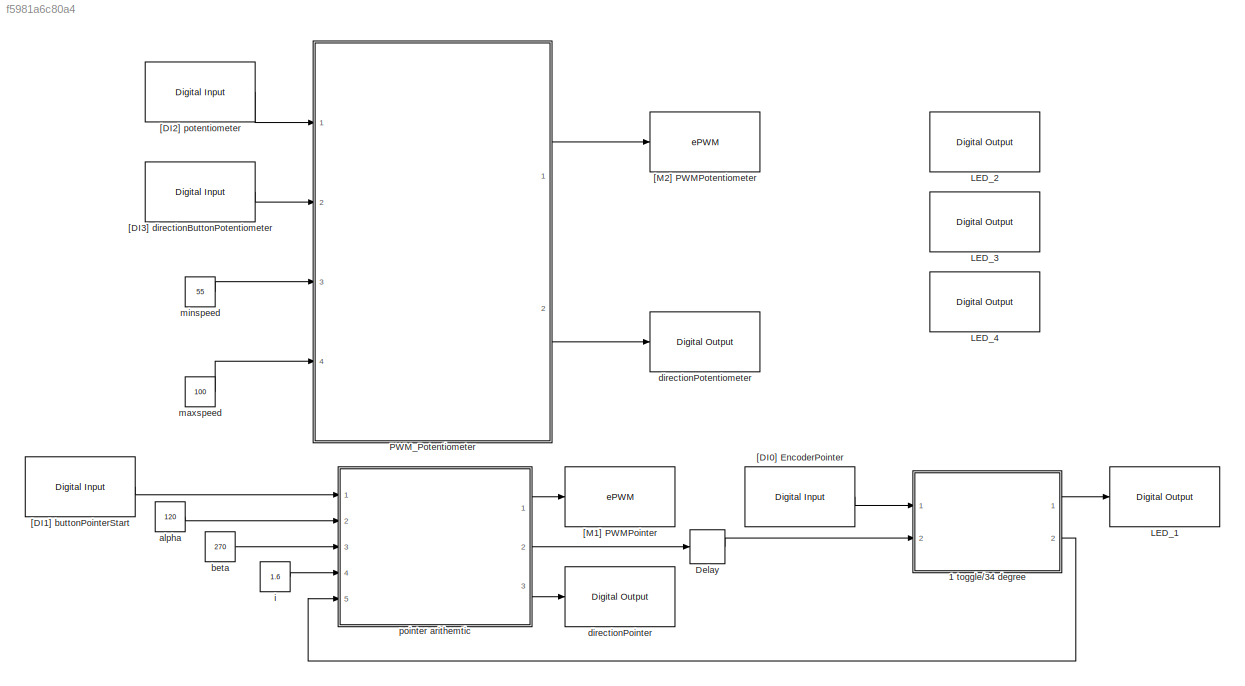
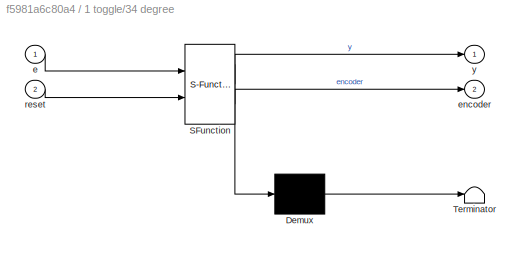
MODEL slx_f5981a6c80a4
KIND model
BLOCK [SubSystem] 1 toggle//34 degree
  ErrorFcn = Stateflow.Translate.translate
  PermitHierarchicalResolution = ExplicitOnly
  Ports = [2, 2]
  RequestExecContextInheritance = off
  SFBlockType = Chart
  TreatAsAtomicUnit = on
BLOCK [Demux] 1 toggle//34 degree/ Demux 
  Outputs = 1
  Ports = [1, 1]
BLOCK [S-Function] 1 toggle//34 degree/ SFunction 
  EnableBusSupport = on
  FunctionName = sf_sfun
  PortCounts = [2 3]
  Ports = [2, 3]
  Tag = Stateflow S-Function introductionTaskPlusPotentiometer_tIB 1
BLOCK [Terminator] 1 toggle//34 degree/ Terminator 
BLOCK [Inport] 1 toggle//34 degree/e
  IconDisplay = Port number
BLOCK [Outport] 1 toggle//34 degree/encoder
  IconDisplay = Port number
  Port = 2
BLOCK [Inport] 1 toggle//34 degree/reset
  IconDisplay = Port number
  Port = 2
BLOCK [Outport] 1 toggle//34 degree/y
  IconDisplay = Port number
BLOCK [Delay] Delay
  DelayLength = 1
  InitialCondition = 0
  InputPortMap = u0
  Ports = [1, 1]
BLOCK [Reference] LED_1  REF=c2833xlib/Digital Output
  GPIO_BIT0_Toggle = off
  GPIO_BIT1_Toggle = off
  GPIO_BIT2_Toggle = off
  GPIO_BIT3_Toggle = off
  GPIO_BIT4_Toggle = off
  GPIO_BIT5_Toggle = off
  GPIO_BIT6_Toggle = off
  GPIO_BIT7_Toggle = off
  GPIO_Bit0 = off
  GPIO_Bit1 = off
  GPIO_Bit2 = on
  GPIO_Bit3 = off
  GPIO_Bit4 = off
  GPIO_Bit5 = off
  GPIO_Bit6 = off
  GPIO_Bit7 = off
  GPIO_Number = GPIO56~GPIO63
  Ports = [1]
  SourceBlock = c2833xlib/Digital Output
  SourceType = C2833x GPIO Digital Output
  UserDataPersistent = on
BLOCK [Reference] LED_2  REF=c2833xlib/Digital Output
  GPIO_BIT0_Toggle = off
  GPIO_BIT1_Toggle = off
  GPIO_BIT2_Toggle = off
  GPIO_BIT3_Toggle = on
  GPIO_BIT4_Toggle = off
  GPIO_BIT5_Toggle = off
  GPIO_BIT6_Toggle = off
  GPIO_BIT7_Toggle = off
  GPIO_Bit0 = off
  GPIO_Bit1 = off
  GPIO_Bit2 = off
  GPIO_Bit3 = on
  GPIO_Bit4 = off
  GPIO_Bit5 = off
  GPIO_Bit6 = off
  GPIO_Bit7 = off
  GPIO_Number = GPIO56~GPIO63
  Ports = [1]
  SourceBlock = c2833xlib/Digital Output
  SourceType = C2833x GPIO Digital Output
  UserDataPersistent = on
BLOCK [Reference] LED_3  REF=c2833xlib/Digital Output
  GPIO_BIT0_Toggle = off
  GPIO_BIT1_Toggle = off
  GPIO_BIT2_Toggle = off
  GPIO_BIT3_Toggle = off
  GPIO_BIT4_Toggle = on
  GPIO_BIT5_Toggle = off
  GPIO_BIT6_Toggle = off
  GPIO_BIT7_Toggle = off
  GPIO_Bit0 = off
  GPIO_Bit1 = off
  GPIO_Bit2 = off
  GPIO_Bit3 = off
  GPIO_Bit4 = on
  GPIO_Bit5 = off
  GPIO_Bit6 = off
  GPIO_Bit7 = off
  GPIO_Number = GPIO56~GPIO63
  Ports = [1]
  SourceBlock = c2833xlib/Digital Output
  SourceType = C2833x GPIO Digital Output
  UserDataPersistent = on
BLOCK [Reference] LED_4  REF=c2833xlib/Digital Output
  GPIO_BIT0_Toggle = off
  GPIO_BIT1_Toggle = off
  GPIO_BIT2_Toggle = off
  GPIO_BIT3_Toggle = off
  GPIO_BIT4_Toggle = on
  GPIO_BIT5_Toggle = on
  GPIO_BIT6_Toggle = off
  GPIO_BIT7_Toggle = off
  GPIO_Bit0 = off
  GPIO_Bit1 = off
  GPIO_Bit2 = off
  GPIO_Bit3 = off
  GPIO_Bit4 = off
  GPIO_Bit5 = on
  GPIO_Bit6 = off
  GPIO_Bit7 = off
  GPIO_Number = GPIO56~GPIO63
  Ports = [1]
  SourceBlock = c2833xlib/Digital Output
  SourceType = C2833x GPIO Digital Output
  UserDataPersistent = on
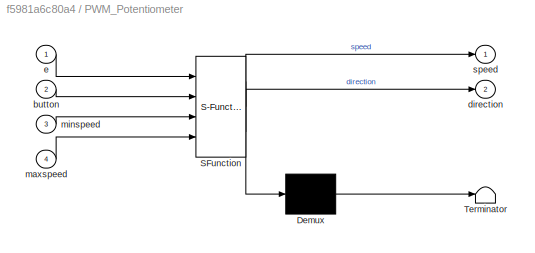
BLOCK [SubSystem] PWM_Potentiometer
  ErrorFcn = Stateflow.Translate.translate
  PermitHierarchicalResolution = ExplicitOnly
  Ports = [4, 2]
  RequestExecContextInheritance = off
  SFBlockType = Chart
  TreatAsAtomicUnit = on
BLOCK [Demux] PWM_Potentiometer/ Demux 
  Outputs = 1
  Ports = [1, 1]
BLOCK [S-Function] PWM_Potentiometer/ SFunction 
  EnableBusSupport = on
  FunctionName = sf_sfun
  PortCounts = [4 3]
  Ports = [4, 3]
  Tag = Stateflow S-Function introductionTaskPlusPotentiometer_tIB 2
BLOCK [Terminator] PWM_Potentiometer/ Terminator 
BLOCK [Inport] PWM_Potentiometer/button
  IconDisplay = Port number
  Port = 2
BLOCK [Outport] PWM_Potentiometer/direction
  IconDisplay = Port number
  Port = 2
BLOCK [Inport] PWM_Potentiometer/e
  IconDisplay = Port number
BLOCK [Inport] PWM_Potentiometer/maxspeed
  IconDisplay = Port number
  Port = 4
BLOCK [Inport] PWM_Potentiometer/minspeed
  IconDisplay = Port number
  Port = 3
BLOCK [Outport] PWM_Potentiometer/speed
  IconDisplay = Port number
BLOCK [Reference] [DI0] EncoderPointer  REF=c2833xlib/Digital Input
  GPIO_Bit0 = on
  GPIO_Bit0_Qualification = Sync to SYSCLKOUT
  GPIO_Bit1 = off
  GPIO_Bit1_Qualification = Sync to SYSCLKOUT
  GPIO_Bit2 = off
  GPIO_Bit2_Qualification = Sync to SYSCLKOUT
  GPIO_Bit3 = off
  GPIO_Bit3_Qualification = Sync to SYSCLKOUT
  GPIO_Bit4 = off
  GPIO_Bit4_Qualification = Sync to SYSCLKOUT
  GPIO_Bit5 = off
  GPIO_Bit5_Qualification = Sync to SYSCLKOUT
  GPIO_Bit6 = off
  GPIO_Bit6_Qualification = Sync to SYSCLKOUT
  GPIO_Bit7 = off
  GPIO_Bit7_Qualification = Sync to SYSCLKOUT
  GPIO_Number = GPIO24~GPIO31
  Ports = [0, 1]
  Qualification_Period = -1
  SourceBlock = c2833xlib/Digital Input
  SourceType = C2833x GPIO Digital Input
  UserDataPersistent = on
  dataType = auto
  sampleTime = 0.001
BLOCK [Reference] [DI1] buttonPointerStart  REF=c2833xlib/Digital Input
  GPIO_Bit0 = off
  GPIO_Bit0_Qualification = Sync to SYSCLKOUT
  GPIO_Bit1 = on
  GPIO_Bit1_Qualification = Sync to SYSCLKOUT
  GPIO_Bit2 = off
  GPIO_Bit2_Qualification = Sync to SYSCLKOUT
  GPIO_Bit3 = off
  GPIO_Bit3_Qualification = Sync to SYSCLKOUT
  GPIO_Bit4 = off
  GPIO_Bit4_Qualification = Sync to SYSCLKOUT
  GPIO_Bit5 = off
  GPIO_Bit5_Qualification = Sync to SYSCLKOUT
  GPIO_Bit6 = off
  GPIO_Bit6_Qualification = Sync to SYSCLKOUT
  GPIO_Bit7 = off
  GPIO_Bit7_Qualification = Sync to SYSCLKOUT
  GPIO_Number = GPIO24~GPIO31
  Ports = [0, 1]
  Qualification_Period = -1
  SourceBlock = c2833xlib/Digital Input
  SourceType = C2833x GPIO Digital Input
  UserDataPersistent = on
  dataType = auto
  sampleTime = 0.001
BLOCK [Reference] [DI2] potentiometer  REF=c2833xlib/Digital Input
  GPIO_Bit0 = off
  GPIO_Bit0_Qualification = Sync to SYSCLKOUT
  GPIO_Bit1 = off
  GPIO_Bit1_Qualification = Sync to SYSCLKOUT
  GPIO_Bit2 = on
  GPIO_Bit2_Qualification = Sync to SYSCLKOUT
  GPIO_Bit3 = off
  GPIO_Bit3_Qualification = Sync to SYSCLKOUT
  GPIO_Bit4 = off
  GPIO_Bit4_Qualification = Sync to SYSCLKOUT
  GPIO_Bit5 = off
  GPIO_Bit5_Qualification = Sync to SYSCLKOUT
  GPIO_Bit6 = off
  GPIO_Bit6_Qualification = Sync to SYSCLKOUT
  GPIO_Bit7 = off
  GPIO_Bit7_Qualification = Sync to SYSCLKOUT
  GPIO_Number = GPIO24~GPIO31
  Ports = [0, 1]
  Qualification_Period = -1
  SourceBlock = c2833xlib/Digital Input
  SourceType = C2833x GPIO Digital Input
  UserDataPersistent = on
  dataType = auto
  sampleTime = 0.001
BLOCK [Reference] [DI3] directionButtonPotentiometer  REF=c2833xlib/Digital Input
  GPIO_Bit0 = off
  GPIO_Bit0_Qualification = Sync to SYSCLKOUT
  GPIO_Bit1 = off
  GPIO_Bit1_Qualification = Sync to SYSCLKOUT
  GPIO_Bit2 = off
  GPIO_Bit2_Qualification = Sync to SYSCLKOUT
  GPIO_Bit3 = on
  GPIO_Bit3_Qualification = Sync to SYSCLKOUT
  GPIO_Bit4 = off
  GPIO_Bit4_Qualification = Sync to SYSCLKOUT
  GPIO_Bit5 = off
  GPIO_Bit5_Qualification = Sync to SYSCLKOUT
  GPIO_Bit6 = off
  GPIO_Bit6_Qualification = Sync to SYSCLKOUT
  GPIO_Bit7 = off
  GPIO_Bit7_Qualification = Sync to SYSCLKOUT
  GPIO_Number = GPIO24~GPIO31
  Ports = [0, 1]
  Qualification_Period = -1
  SourceBlock = c2833xlib/Digital Input
  SourceType = C2833x GPIO Digital Input
  UserDataPersistent = on
  dataType = auto
  sampleTime = 0.001
BLOCK [Reference] [M1] PWMPointer  REF=c280xlib/ePWM
  CMPASource = Specify via dialog
  CMPAUnits = Clock cycles
  CMPAValue_clk = 32000
  CMPAValue_per = 50
  CMPBSource = Input port
  CMPBUnits = Percentages
  CMPBValue_clk = 32000
  CMPBValue_per = 35
  DBSource_ePWMxA = ePWMxA
  DBSource_ePWMxB = ePWMxA
  DBedgeDelay = Positive
  DBperiodSource = Specify via dialog
  DBpolarity = Active high (AH)
  FEDperiod = 0
  HRPWM_CTLMode = Phase control mode
  HRPWM_EDGMode = Both edge
  HRPWM_LoadMode = Counter equals to zero (CTR=ZERO)
  HSclockPrescale = 1
  Ports = [1]
  REDperiod = 0
  SourceBlock = c280xlib/ePWM
  SourceType = C280x/C2833x ePWM
  adcrequestEventA = First event
  adcrequestEventB = First event
  adcstartEventA = Counter equals to zero (CTR=Zero)
  adcstartEventB = Counter equals to zero (CTR=Zero)
  adcstartModuleA = off
  adcstartModuleB = off
  checkMode = off
  chopperDuty = 12.5%
  chopperEnable = off
  chopperFirstwidth = 1
  chopperFrequency = 1
  clockPrescale = 1
  countingMode = Up
  ePWMxACSFenable = off
  ePWMxACSFvalue = Forcing disable
  ePWMxALoadMode = Load on counter equals to zero (CTR=Zero)
  ePWMxASFreload = Zero
  ePWMxAStatus = off
  ePWMxAValue = 0
  ePWMxAactionLogic1 = Do nothing
  ePWMxAactionLogic2 = Clear
  ePWMxAactionLogic3 = Set
  ePWMxAactionLogic4 = Do nothing
  ePWMxAactionLogic5 = Do nothing
  ePWMxAactionLogic6 = Do nothing
  ePWMxAforced = No action
  ePWMxBCSFenable = off
  ePWMxBCSFvalue = Forcing disable
  ePWMxBLoadMode = Load on counter equals to zero (CTR=Zero)
  ePWMxBSFreload = Zero
  ePWMxBStatus = on
  ePWMxBValue = 0
  ePWMxBactionLogic1 = Do nothing
  ePWMxBactionLogic2 = Set
  ePWMxBactionLogic3 = Do nothing
  ePWMxBactionLogic4 = Do nothing
  ePWMxBactionLogic5 = Clear
  ePWMxBactionLogic6 = Do nothing
  ePWMxBforced = No action
  enCMPAshadow = Counter equals to zero
  enCMPBshadow = Counter equals to zero
  enHRPWM = off
  enSFO = on
  enTzCbcIntr = off
  enTzOstIntr = off
  enableDBePWMxA = off
  enableDBePWMxB = off
  intEn = off
  intPrd = First event
  intSel = Counter equals to zero (CTR=Zero)
  periodUnits = Clock cycles
  phaseActive = 0
  phaseActiveEnable = Disable
  phaseDirection = Count down after sync
  synchronizationEnable = off
  synchronizationOption = Disable
  tbshadow = Counter equals to zero
  timerPeriod = -1
  timerPeriod_clk = 64000
  timerPeriod_sec = 0.0001
  timerSource = Specify via dialog
  tripZoneoption = One-shot trip (OSHT)
  tripZonesource = Specify via dialog
  tzselCBC1 = off
  tzselCBC2 = off
  tzselCBC3 = off
  tzselCBC4 = off
  tzselCBC5 = off
  tzselCBC6 = off
  tzselOSHT1 = off
  tzselOSHT2 = off
  tzselOSHT3 = off
  tzselOSHT4 = off
  tzselOSHT5 = off
  tzselOSHT6 = off
  useModule = ePWM2
BLOCK [Reference] [M2] PWMPotentiometer  REF=c280xlib/ePWM
  CMPASource = Specify via dialog
  CMPAUnits = Clock cycles
  CMPAValue_clk = 32000
  CMPAValue_per = 50
  CMPBSource = Input port
  CMPBUnits = Percentages
  CMPBValue_clk = 32000
  CMPBValue_per = 55
  DBSource_ePWMxA = ePWMxA
  DBSource_ePWMxB = ePWMxA
  DBedgeDelay = Positive
  DBperiodSource = Specify via dialog
  DBpolarity = Active high (AH)
  FEDperiod = 0
  HRPWM_CTLMode = Phase control mode
  HRPWM_EDGMode = Both edge
  HRPWM_LoadMode = Counter equals to zero (CTR=ZERO)
  HSclockPrescale = 1
  Ports = [1]
  REDperiod = 0
  SourceBlock = c280xlib/ePWM
  SourceType = C280x/C2833x ePWM
  adcrequestEventA = First event
  adcrequestEventB = First event
  adcstartEventA = Counter equals to zero (CTR=Zero)
  adcstartEventB = Counter equals to zero (CTR=Zero)
  adcstartModuleA = off
  adcstartModuleB = off
  checkMode = off
  chopperDuty = 12.5%
  chopperEnable = off
  chopperFirstwidth = 1
  chopperFrequency = 1
  clockPrescale = 1
  countingMode = Up
  ePWMxACSFenable = off
  ePWMxACSFvalue = Forcing disable
  ePWMxALoadMode = Load on counter equals to zero (CTR=Zero)
  ePWMxASFreload = Zero
  ePWMxAStatus = off
  ePWMxAValue = 0
  ePWMxAactionLogic1 = Do nothing
  ePWMxAactionLogic2 = Clear
  ePWMxAactionLogic3 = Set
  ePWMxAactionLogic4 = Do nothing
  ePWMxAactionLogic5 = Do nothing
  ePWMxAactionLogic6 = Do nothing
  ePWMxAforced = No action
  ePWMxBCSFenable = off
  ePWMxBCSFvalue = Forcing disable
  ePWMxBLoadMode = Load on counter equals to zero (CTR=Zero)
  ePWMxBSFreload = Zero
  ePWMxBStatus = on
  ePWMxBValue = 0
  ePWMxBactionLogic1 = Do nothing
  ePWMxBactionLogic2 = Set
  ePWMxBactionLogic3 = Do nothing
  ePWMxBactionLogic4 = Do nothing
  ePWMxBactionLogic5 = Clear
  ePWMxBactionLogic6 = Do nothing
  ePWMxBforced = No action
  enCMPAshadow = Counter equals to zero
  enCMPBshadow = Counter equals to zero
  enHRPWM = off
  enSFO = on
  enTzCbcIntr = off
  enTzOstIntr = off
  enableDBePWMxA = off
  enableDBePWMxB = off
  intEn = off
  intPrd = First event
  intSel = Counter equals to zero (CTR=Zero)
  periodUnits = Clock cycles
  phaseActive = 0
  phaseActiveEnable = Disable
  phaseDirection = Count down after sync
  synchronizationEnable = off
  synchronizationOption = Disable
  tbshadow = Counter equals to zero
  timerPeriod = -1
  timerPeriod_clk = 64000
  timerPeriod_sec = 0.0001
  timerSource = Specify via dialog
  tripZoneoption = One-shot trip (OSHT)
  tripZonesource = Specify via dialog
  tzselCBC1 = off
  tzselCBC2 = off
  tzselCBC3 = off
  tzselCBC4 = off
  tzselCBC5 = off
  tzselCBC6 = off
  tzselOSHT1 = off
  tzselOSHT2 = off
  tzselOSHT3 = off
  tzselOSHT4 = off
  tzselOSHT5 = off
  tzselOSHT6 = off
  useModule = ePWM1
BLOCK [Constant] alpha
  OutDataTypeStr = single
  Value = 120
BLOCK [Constant] beta
  OutDataTypeStr = single
  Value = 270
BLOCK [Reference] directionPointer  REF=c2833xlib/Digital Output
  GPIO_BIT0_Toggle = off
  GPIO_BIT1_Toggle = off
  GPIO_BIT2_Toggle = off
  GPIO_BIT3_Toggle = off
  GPIO_BIT4_Toggle = off
  GPIO_BIT5_Toggle = off
  GPIO_BIT6_Toggle = off
  GPIO_BIT7_Toggle = off
  GPIO_Bit0 = off
  GPIO_Bit1 = off
  GPIO_Bit2 = off
  GPIO_Bit3 = off
  GPIO_Bit4 = off
  GPIO_Bit5 = on
  GPIO_Bit6 = off
  GPIO_Bit7 = off
  GPIO_Number = GPIO16~GPIO23
  Ports = [1]
  SourceBlock = c2833xlib/Digital Output
  SourceType = C2833x GPIO Digital Output
  UserDataPersistent = on
BLOCK [Reference] directionPotentiometer  REF=c2833xlib/Digital Output
  GPIO_BIT0_Toggle = off
  GPIO_BIT1_Toggle = off
  GPIO_BIT2_Toggle = off
  GPIO_BIT3_Toggle = off
  GPIO_BIT4_Toggle = off
  GPIO_BIT5_Toggle = off
  GPIO_BIT6_Toggle = off
  GPIO_BIT7_Toggle = off
  GPIO_Bit0 = off
  GPIO_Bit1 = off
  GPIO_Bit2 = off
  GPIO_Bit3 = off
  GPIO_Bit4 = on
  GPIO_Bit5 = off
  GPIO_Bit6 = off
  GPIO_Bit7 = off
  GPIO_Number = GPIO16~GPIO23
  Ports = [1]
  SourceBlock = c2833xlib/Digital Output
  SourceType = C2833x GPIO Digital Output
  UserDataPersistent = on
BLOCK [Constant] i
  OutDataTypeStr = single
  Value = 1.6
BLOCK [Constant] maxspeed
  OutDataTypeStr = uint16
  OutMax = [100]
  OutMin = [0]
  Value = 100
BLOCK [Constant] minspeed
  OutDataTypeStr = uint16
  OutMax = [100]
  OutMin = [0]
  Value = 55
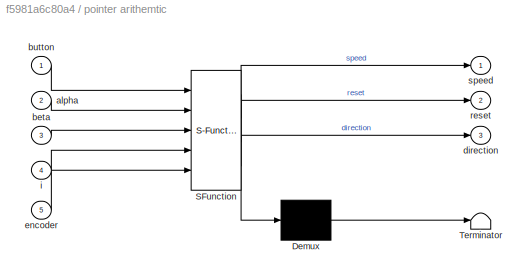
BLOCK [SubSystem] pointer arithemtic
  ErrorFcn = Stateflow.Translate.translate
  PermitHierarchicalResolution = ExplicitOnly
  Ports = [5, 3]
  RequestExecContextInheritance = off
  SFBlockType = Chart
  TreatAsAtomicUnit = on
BLOCK [Demux] pointer arithemtic/ Demux 
  Outputs = 1
  Ports = [1, 1]
BLOCK [S-Function] pointer arithemtic/ SFunction 
  EnableBusSupport = on
  FunctionName = sf_sfun
  PortCounts = [5 4]
  Ports = [5, 4]
  Tag = Stateflow S-Function introductionTaskPlusPotentiometer_tIB 3
BLOCK [Terminator] pointer arithemtic/ Terminator 
BLOCK [Inport] pointer arithemtic/alpha
  IconDisplay = Port number
  Port = 2
BLOCK [Inport] pointer arithemtic/beta
  IconDisplay = Port number
  Port = 3
BLOCK [Inport] pointer arithemtic/button
  IconDisplay = Port number
BLOCK [Outport] pointer arithemtic/direction
  IconDisplay = Port number
  Port = 3
BLOCK [Inport] pointer arithemtic/encoder
  IconDisplay = Port number
  Port = 5
BLOCK [Inport] pointer arithemtic/i
  IconDisplay = Port number
  Port = 4
BLOCK [Outport] pointer arithemtic/reset
  IconDisplay = Port number
  Port = 2
BLOCK [Outport] pointer arithemtic/speed
  IconDisplay = Port number
LINE 1 toggle//34 degree:1 -> LED_1:1
LINE 1 toggle//34 degree:2 -> pointer arithemtic:5
LINE Delay:1 -> 1 toggle//34 degree:2
LINE PWM_Potentiometer:1 -> [M2] PWMPotentiometer:1
LINE PWM_Potentiometer:2 -> directionPotentiometer:1
LINE [DI0] EncoderPointer:1 -> 1 toggle//34 degree:1
LINE [DI1] buttonPointerStart:1 -> pointer arithemtic:1
LINE [DI2] potentiometer:1 -> PWM_Potentiometer:1
LINE [DI3] directionButtonPotentiometer:1 -> PWM_Potentiometer:2
LINE alpha:1 -> pointer arithemtic:2
LINE beta:1 -> pointer arithemtic:3
LINE i:1 -> pointer arithemtic:4
LINE maxspeed:1 -> PWM_Potentiometer:4
LINE minspeed:1 -> PWM_Potentiometer:3
LINE pointer arithemtic:1 -> [M1] PWMPointer:1
LINE pointer arithemtic:2 -> Delay:1
LINE pointer arithemtic:3 -> directionPointer:1
CHART 1 toggle//34 degree states=4 transitions=7
  STATE_LABEL 'Drehung\n\nentry: y=~y;\n counter = int16(0);\n'
  STATE_LABEL 'X0\n\nentry: encoder= int16(0);\n counter = int16(0);\n y=false;\n'
  STATE_LABEL 'Start\n\nentry: encoder = encoder + 1;\n counter = counter + 1;'
  STATE_LABEL 'Ende'
CHART PWM_Potentiometer states=14 transitions=17
  STATE_LABEL 'Speed_Controller'
  STATE_LABEL 'Start'
  STATE_LABEL 'decelerate'
  STATE_LABEL 'start'
  STATE_LABEL 'reverse\n\nentry: direction = ~direction;\n reversed = true;\n accelerate_with_button = true;'
  STATE_LABEL 'decrease_speed\n\nentry: speed = speed - 1;'
  STATE_LABEL 'end'
  STATE_LABEL '[speed == minspeed]'
  STATE_LABEL '[speed > minspeed]'
  STATE_LABEL 'accelerate'
  STATE_LABEL 'start'
  STATE_LABEL 'increase_speed\n\nentry: speed = speed + 1'
  STATE_LABEL 'end'
  STATE_LABEL '[speed == maxspeed]'
  STATE_LABEL '[speed < maxspeed]'
  STATE_LABEL '{speed = uint16(minspeed);\ndirection = true;\nreversed = false;\naccelerate_with_button = false;}'
  STATE_LABEL '[[[e > 0] && [button == false]] || [[e>0] && [button == true] && [accelerate_with_button == true]]]'
  STATE_LABEL '[[e > 0] && [button == true] && [accelerate_with_button == false]]'
  STATE_LABEL '[e == 0]'
  STATE_LABEL '[e == 0]'
  STATE_LABEL 'Start'
  STATE_LABEL 'decelerate'
  STATE_LABEL 'start'
  STATE_LABEL 'reverse\n\nentry: direction = ~direction;\n reversed = true;\n accelerate_with_button = true;'
  STATE_LABEL 'decrease_speed\n\nentry: speed = speed - 1;'
  STATE_LABEL 'end'
  STATE_LABEL '[speed == minspeed]'
  STATE_LABEL '[speed > minspeed]'
  STATE_LABEL 'start'
  STATE_LABEL 'reverse\n\nentry: direction = ~direction;\n reversed = true;\n accelerate_with_button = true;'
  STATE_LABEL 'decrease_speed\n\nentry: speed = speed - 1;'
  STATE_LABEL 'end'
  STATE_LABEL 'accelerate'
  STATE_LABEL 'start'
  STATE_LABEL 'increase_speed\n\nentry: speed = speed + 1'
  STATE_LABEL 'end'
  STATE_LABEL '[speed == maxspeed]'
  STATE_LABEL '[speed < maxspeed]'
  STATE_LABEL 'start'
  STATE_LABEL 'increase_speed\n\nentry: speed = speed + 1'
CHART pointer arithemtic states=6 transitions=7
  STATE_LABEL 'start\n\nentry: speed = 0;\n direction = false;\n reset = true;\n alpha_reached =  alpha / 360 * i * 75;\n beta_reached =  beta / 360 * i * 75;'
  STATE_LABEL 'wait_and_prepare\n\nentry: reset = true;\n direction = [beta_reached < alpha_reached];\n beta_reached = abs( alpha_reached - beta_reached);\nexit: reset = false;'
  STATE_LABEL 'move_1\n\nentry: reset = false;\n speed = 55;'
  STATE_LABEL 'angle_alpha\n\nentry: speed = 0;'
  STATE_LABEL 'move_2\n\nentry: speed = 55;'
  STATE_LABEL 'wait_1'
